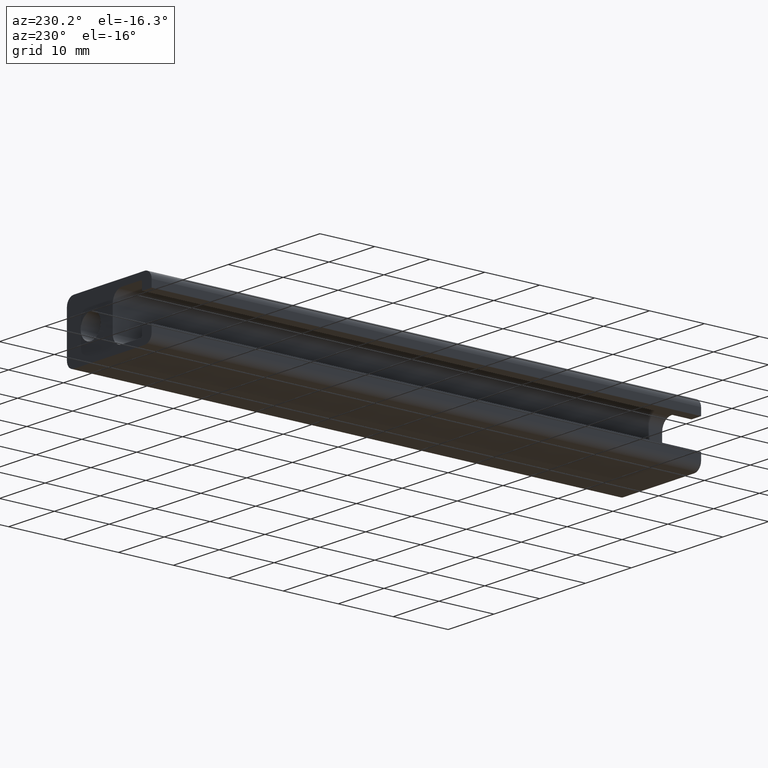
[diagram: clean part render]
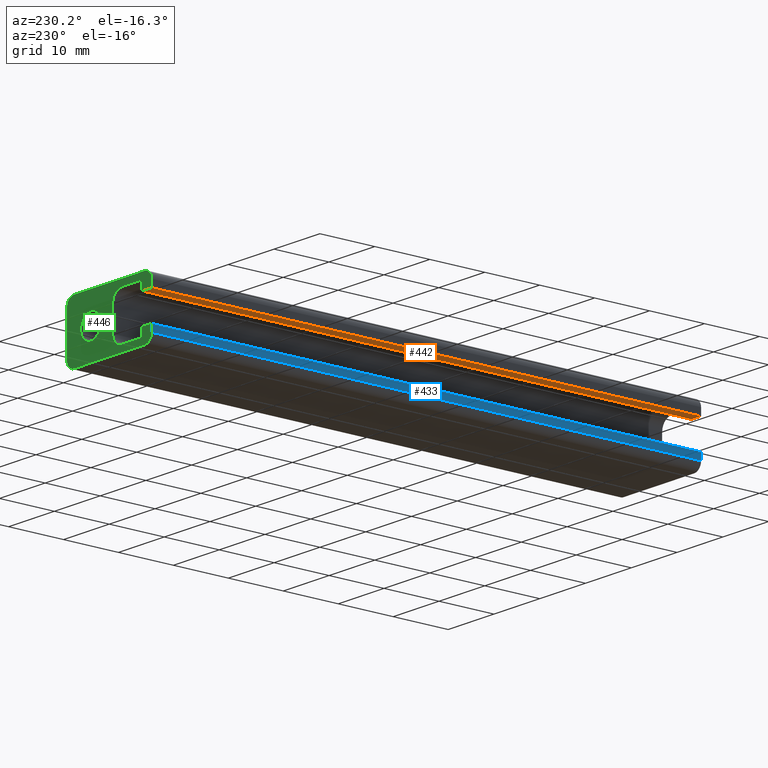
[diagram: same view with three faces highlighted in distinct colors, each labeled with its STEP entity id]
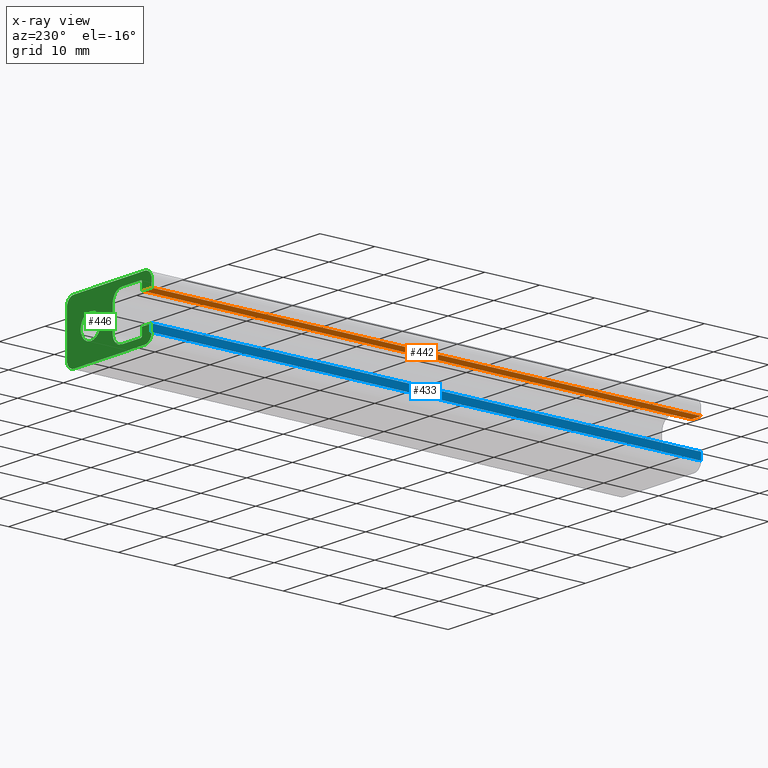
[diagram: x-ray of the same camera — body ghosted, the three highlighted faces saturated]
A machine part, auxiliary view with three faces highlighted in distinct colors.
The next image is the same camera in x-ray (body ghosted, the three faces saturated) — at least one of them is partly hidden behind the body in this view.
Their STEP definitions:

[orange] entity #442 — the highlighted planar face has unit normal (-0, 0, -1).
#52=LINE('',#728,#96);
#53=LINE('',#731,#97);
#54=LINE('',#733,#98);
#55=LINE('',#734,#99);
#96=VECTOR('',#597,100.);
#97=VECTOR('',#600,2.10000000000038);
#98=VECTOR('',#601,2.10000000000038);
#99=VECTOR('',#602,100.);
#113=PLANE('',#483);
#138=FACE_OUTER_BOUND('',#162,.T.);
#162=EDGE_LOOP('',(#361,#362,#363,#364));
#223=VERTEX_POINT('',#724);
#224=VERTEX_POINT('',#726);
#225=VERTEX_POINT('',#730);
#226=VERTEX_POINT('',#732);
#282=EDGE_CURVE('',#223,#224,#52,.T.);
#283=EDGE_CURVE('',#223,#225,#53,.T.);
#284=EDGE_CURVE('',#226,#224,#54,.T.);
#285=EDGE_CURVE('',#225,#226,#55,.T.);
#361=ORIENTED_EDGE('',*,*,#283,.F.);
#362=ORIENTED_EDGE('',*,*,#282,.T.);
#363=ORIENTED_EDGE('',*,*,#284,.F.);
#364=ORIENTED_EDGE('',*,*,#285,.F.);
#442=ADVANCED_FACE('',(#138),#113,.T.);
#483=AXIS2_PLACEMENT_3D('',#729,#598,#599);
#597=DIRECTION('',(0.,1.,0.));
#598=DIRECTION('center_axis',(-4.22942104619031E-15,0.,-1.));
#599=DIRECTION('ref_axis',(-1.,0.,4.21884749357559E-15));
#600=DIRECTION('',(1.,0.,-4.22942104619031E-15));
#601=DIRECTION('',(-1.,0.,4.22942104619031E-15));
#602=DIRECTION('',(0.,1.,0.));
#724=CARTESIAN_POINT('',(-9.25,0.,2.59999999999991));
#726=CARTESIAN_POINT('',(-9.25,100.,2.59999999999991));
#728=CARTESIAN_POINT('',(-9.25,0.,2.59999999999991));
#729=CARTESIAN_POINT('Origin',(-7.14999999999962,0.,2.5999999999999));
#730=CARTESIAN_POINT('',(-7.14999999999962,0.,2.5999999999999));
#731=CARTESIAN_POINT('',(-9.25,0.,2.59999999999991));
#732=CARTESIAN_POINT('',(-7.14999999999962,100.,2.5999999999999));
#733=CARTESIAN_POINT('',(-9.25,100.,2.59999999999991));
#734=CARTESIAN_POINT('',(-7.14999999999962,0.,2.5999999999999));

[blue] entity #433 — the highlighted planar face has unit normal (-1, 0, -0).
#33=LINE('',#674,#77);
#34=LINE('',#677,#78);
#35=LINE('',#679,#79);
#36=LINE('',#680,#80);
#77=VECTOR('',#544,100.);
#78=VECTOR('',#547,1.29999999999824);
#79=VECTOR('',#548,1.29999999999824);
#80=VECTOR('',#549,100.);
#108=PLANE('',#466);
#129=FACE_OUTER_BOUND('',#153,.T.);
#153=EDGE_LOOP('',(#325,#326,#327,#328));
#205=VERTEX_POINT('',#670);
#206=VERTEX_POINT('',#672);
#207=VERTEX_POINT('',#676);
#208=VERTEX_POINT('',#678);
#255=EDGE_CURVE('',#205,#206,#33,.T.);
#256=EDGE_CURVE('',#205,#207,#34,.T.);
#257=EDGE_CURVE('',#208,#206,#35,.T.);
#258=EDGE_CURVE('',#207,#208,#36,.T.);
#325=ORIENTED_EDGE('',*,*,#256,.F.);
#326=ORIENTED_EDGE('',*,*,#255,.T.);
#327=ORIENTED_EDGE('',*,*,#257,.F.);
#328=ORIENTED_EDGE('',*,*,#258,.F.);
#433=ADVANCED_FACE('',(#129),#108,.T.);
#466=AXIS2_PLACEMENT_3D('',#675,#545,#546);
#544=DIRECTION('',(0.,1.,0.));
#545=DIRECTION('center_axis',(-1.,0.,-6.83214169001023E-15));
#546=DIRECTION('ref_axis',(-6.75015598972095E-15,0.,1.));
#547=DIRECTION('',(6.83214169001023E-15,0.,-1.));
#548=DIRECTION('',(-6.83214169001023E-15,0.,1.));
#549=DIRECTION('',(0.,1.,0.));
#670=CARTESIAN_POINT('',(-9.25,0.,-2.60000000000049));
#672=CARTESIAN_POINT('',(-9.25,100.,-2.60000000000049));
#674=CARTESIAN_POINT('',(-9.25,0.,-2.60000000000049));
#675=CARTESIAN_POINT('Origin',(-9.24999999999999,0.,-3.89999999999873));
#676=CARTESIAN_POINT('',(-9.24999999999999,0.,-3.89999999999873));
#677=CARTESIAN_POINT('',(-9.25,0.,-2.60000000000049));
#678=CARTESIAN_POINT('',(-9.24999999999999,100.,-3.89999999999873));
#679=CARTESIAN_POINT('',(-9.25,100.,-2.60000000000049));
#680=CARTESIAN_POINT('',(-9.24999999999999,0.,-3.89999999999873));

[green] entity #446 — the highlighted planar face has unit normal (0, 1, 0).
#17=LINE('',#631,#61);
#21=LINE('',#643,#65);
#25=LINE('',#655,#69);
#29=LINE('',#667,#73);
#32=LINE('',#673,#76);
#35=LINE('',#679,#79);
#39=LINE('',#691,#83);
#43=LINE('',#703,#87);
#47=LINE('',#715,#91);
#51=LINE('',#727,#95);
#54=LINE('',#733,#98);
#57=LINE('',#739,#101);
#61=VECTOR('',#502,4.09999999999968);
#65=VECTOR('',#514,4.40000000000111);
#69=VECTOR('',#526,4.09999999999968);
#73=VECTOR('',#538,1.29999999999825);
#76=VECTOR('',#543,2.10000000000037);
#79=VECTOR('',#548,1.29999999999824);
#83=VECTOR('',#560,15.5000000000005);
#87=VECTOR('',#572,7.79999999999745);
#91=VECTOR('',#584,15.5000000000004);
#95=VECTOR('',#596,1.29999999999882);
#98=VECTOR('',#601,2.10000000000038);
#101=VECTOR('',#606,1.29999999999882);
#116=PLANE('',#489);
#119=FACE_BOUND('',#168,.T.);
#142=FACE_OUTER_BOUND('',#167,.T.);
#167=EDGE_LOOP('',(#394,#395,#396,#397,#398,#399,#400,#401,#402,#403,#404,
#405,#406,#407,#408,#409,#410,#411,#412,#413));
#168=EDGE_LOOP('',(#414));
#169=CIRCLE('',#450,2.2);
#172=CIRCLE('',#455,2.00000000000045);
#174=CIRCLE('',#459,2.00000000000045);
#176=CIRCLE('',#463,0.299999999999727);
#178=CIRCLE('',#469,1.49999999999977);
#180=CIRCLE('',#473,1.50000000000148);
#182=CIRCLE('',#477,1.49999999999974);
#184=CIRCLE('',#481,1.50000000000091);
#186=CIRCLE('',#487,0.299999999999727);
#187=VERTEX_POINT('',#620);
#191=VERTEX_POINT('',#628);
#192=VERTEX_POINT('',#630);
#194=VERTEX_POINT('',#636);
#196=VERTEX_POINT('',#642);
#198=VERTEX_POINT('',#648);
#200=VERTEX_POINT('',#654);
#202=VERTEX_POINT('',#660);
#204=VERTEX_POINT('',#666);
#206=VERTEX_POINT('',#672);
#208=VERTEX_POINT('',#678);
#210=VERTEX_POINT('',#684);
#212=VERTEX_POINT('',#690);
#214=VERTEX_POINT('',#696);
#216=VERTEX_POINT('',#702);
#218=VERTEX_POINT('',#708);
#220=VERTEX_POINT('',#714);
#222=VERTEX_POINT('',#720);
#224=VERTEX_POINT('',#726);
#226=VERTEX_POINT('',#732);
#228=VERTEX_POINT('',#738);
#229=EDGE_CURVE('',#187,#187,#169,.T.);
#233=EDGE_CURVE('',#192,#191,#17,.T.);
#236=EDGE_CURVE('',#194,#192,#172,.T.);
#239=EDGE_CURVE('',#196,#194,#21,.T.);
#242=EDGE_CURVE('',#198,#196,#174,.T.);
#245=EDGE_CURVE('',#200,#198,#25,.T.);
#248=EDGE_CURVE('',#202,#200,#176,.T.);
#251=EDGE_CURVE('',#204,#202,#29,.T.);
#254=EDGE_CURVE('',#206,#204,#32,.T.);
#257=EDGE_CURVE('',#208,#206,#35,.T.);
#260=EDGE_CURVE('',#210,#208,#178,.T.);
#263=EDGE_CURVE('',#212,#210,#39,.T.);
#266=EDGE_CURVE('',#214,#212,#180,.T.);
#269=EDGE_CURVE('',#216,#214,#43,.T.);
#272=EDGE_CURVE('',#218,#216,#182,.T.);
#275=EDGE_CURVE('',#220,#218,#47,.T.);
#278=EDGE_CURVE('',#222,#220,#184,.T.);
#281=EDGE_CURVE('',#224,#222,#51,.T.);
#284=EDGE_CURVE('',#226,#224,#54,.T.);
#287=EDGE_CURVE('',#228,#226,#57,.T.);
#290=EDGE_CURVE('',#191,#228,#186,.T.);
#394=ORIENTED_EDGE('',*,*,#290,.T.);
#395=ORIENTED_EDGE('',*,*,#287,.T.);
#396=ORIENTED_EDGE('',*,*,#284,.T.);
#397=ORIENTED_EDGE('',*,*,#281,.T.);
#398=ORIENTED_EDGE('',*,*,#278,.T.);
#399=ORIENTED_EDGE('',*,*,#275,.T.);
#400=ORIENTED_EDGE('',*,*,#272,.T.);
#401=ORIENTED_EDGE('',*,*,#269,.T.);
#402=ORIENTED_EDGE('',*,*,#266,.T.);
#403=ORIENTED_EDGE('',*,*,#263,.T.);
#404=ORIENTED_EDGE('',*,*,#260,.T.);
#405=ORIENTED_EDGE('',*,*,#257,.T.);
#406=ORIENTED_EDGE('',*,*,#254,.T.);
#407=ORIENTED_EDGE('',*,*,#251,.T.);
#408=ORIENTED_EDGE('',*,*,#248,.T.);
#409=ORIENTED_EDGE('',*,*,#245,.T.);
#410=ORIENTED_EDGE('',*,*,#242,.T.);
#411=ORIENTED_EDGE('',*,*,#239,.T.);
#412=ORIENTED_EDGE('',*,*,#236,.T.);
#413=ORIENTED_EDGE('',*,*,#233,.T.);
#414=ORIENTED_EDGE('',*,*,#229,.T.);
#446=ADVANCED_FACE('',(#142,#119),#116,.T.);
#450=AXIS2_PLACEMENT_3D('',#621,#494,#495);
#455=AXIS2_PLACEMENT_3D('',#637,#508,#509);
#459=AXIS2_PLACEMENT_3D('',#649,#520,#521);
#463=AXIS2_PLACEMENT_3D('',#661,#532,#533);
#469=AXIS2_PLACEMENT_3D('',#685,#554,#555);
#473=AXIS2_PLACEMENT_3D('',#697,#566,#567);
#477=AXIS2_PLACEMENT_3D('',#709,#578,#579);
#481=AXIS2_PLACEMENT_3D('',#721,#590,#591);
#487=AXIS2_PLACEMENT_3D('',#743,#612,#613);
#489=AXIS2_PLACEMENT_3D('',#745,#616,#617);
#494=DIRECTION('center_axis',(0.,-1.,0.));
#495=DIRECTION('ref_axis',(1.,0.,0.));
#502=DIRECTION('',(-1.,0.,-5.54569940105487E-13));
#508=DIRECTION('center_axis',(0.,-1.,0.));
#509=DIRECTION('ref_axis',(0.,0.,1.));
#514=DIRECTION('',(1.00929365874989E-15,0.,1.));
#520=DIRECTION('center_axis',(0.,-1.,0.));
#521=DIRECTION('ref_axis',(1.,0.,0.));
#526=DIRECTION('',(1.,0.,-1.38642485026372E-13));
#532=DIRECTION('center_axis',(0.,-1.,0.));
#533=DIRECTION('ref_axis',(0.,0.,-1.));
#538=DIRECTION('',(-3.41607084500508E-15,0.,-1.));
#543=DIRECTION('',(1.,0.,4.22942104619033E-15));
#548=DIRECTION('',(-6.83214169001023E-15,0.,1.));
#554=DIRECTION('center_axis',(0.,1.,0.));
#555=DIRECTION('ref_axis',(-5.92118946466844E-15,0.,1.));
#560=DIRECTION('',(-1.,0.,1.10735793294867E-13));
#566=DIRECTION('center_axis',(0.,1.,0.));
#567=DIRECTION('ref_axis',(-1.,0.,-2.96059473233082E-15));
#572=DIRECTION('',(2.24321985488438E-13,0.,-1.));
#578=DIRECTION('center_axis',(0.,1.,0.));
#579=DIRECTION('ref_axis',(-4.44089209850139E-15,0.,-1.));
#584=DIRECTION('',(1.,0.,-7.56384202583311E-14));
#590=DIRECTION('center_axis',(0.,1.,0.));
#591=DIRECTION('ref_axis',(1.,0.,-5.92118946466836E-15));
#596=DIRECTION('',(0.,0.,1.));
#601=DIRECTION('',(-1.,0.,4.22942104619031E-15));
#606=DIRECTION('',(6.83214169000715E-15,0.,-1.));
#612=DIRECTION('center_axis',(0.,-1.,0.));
#613=DIRECTION('ref_axis',(-1.,0.,0.));
#616=DIRECTION('center_axis',(0.,1.,0.));
#617=DIRECTION('ref_axis',(0.,0.,1.));
#620=CARTESIAN_POINT('',(1.84999999999931,100.,5.68703610903893E-13));
#621=CARTESIAN_POINT('Origin',(4.04999999999931,100.,5.6843418860808E-13));
#628=CARTESIAN_POINT('',(-6.8499999999999,100.,4.19999999999845));
#630=CARTESIAN_POINT('',(-2.75000000000022,100.,4.20000000000073));
#631=CARTESIAN_POINT('',(-6.8499999999999,100.,4.19999999999845));
#636=CARTESIAN_POINT('',(-0.749999999999762,100.,2.20000000000027));
#637=CARTESIAN_POINT('Origin',(-2.75000000000022,100.,2.20000000000028));
#642=CARTESIAN_POINT('',(-0.749999999999766,100.,-2.20000000000084));
#643=CARTESIAN_POINT('',(-0.749999999999762,100.,2.20000000000027));
#648=CARTESIAN_POINT('',(-2.75000000000022,100.,-4.2000000000013));
#649=CARTESIAN_POINT('Origin',(-2.75000000000022,100.,-2.20000000000084));
#654=CARTESIAN_POINT('',(-6.8499999999999,100.,-4.20000000000073));
#655=CARTESIAN_POINT('',(-2.75000000000022,100.,-4.2000000000013));
#660=CARTESIAN_POINT('',(-7.14999999999963,100.,-3.89999999999873));
#661=CARTESIAN_POINT('Origin',(-6.8499999999999,100.,-3.89999999999873));
#666=CARTESIAN_POINT('',(-7.14999999999963,100.,-2.60000000000048));
#667=CARTESIAN_POINT('',(-7.14999999999963,100.,-3.89999999999873));
#672=CARTESIAN_POINT('',(-9.25,100.,-2.60000000000049));
#673=CARTESIAN_POINT('',(-7.14999999999963,100.,-2.60000000000048));
#678=CARTESIAN_POINT('',(-9.24999999999999,100.,-3.89999999999873));
#679=CARTESIAN_POINT('',(-9.25,100.,-2.60000000000049));
#684=CARTESIAN_POINT('',(-7.75000000000021,100.,-5.39999999999849));
#685=CARTESIAN_POINT('Origin',(-7.75000000000022,100.,-3.89999999999873));
#690=CARTESIAN_POINT('',(7.75000000000024,100.,-5.40000000000021));
#691=CARTESIAN_POINT('',(-7.75000000000021,100.,-5.39999999999849));
#696=CARTESIAN_POINT('',(9.25000000000171,100.,-3.89999999999872));
#697=CARTESIAN_POINT('Origin',(7.75000000000023,100.,-3.89999999999873));
#702=CARTESIAN_POINT('',(9.24999999999996,100.,3.89999999999873));
#703=CARTESIAN_POINT('',(9.25000000000171,100.,-3.89999999999872));
#708=CARTESIAN_POINT('',(7.75000000000023,100.,5.39999999999846));
#709=CARTESIAN_POINT('Origin',(7.75000000000022,100.,3.89999999999872));
#714=CARTESIAN_POINT('',(-7.75000000000021,100.,5.39999999999964));
#715=CARTESIAN_POINT('',(7.75000000000023,100.,5.39999999999846));
#720=CARTESIAN_POINT('',(-9.25,100.,3.89999999999874));
#721=CARTESIAN_POINT('Origin',(-7.75000000000021,100.,3.89999999999873));
#726=CARTESIAN_POINT('',(-9.25,100.,2.59999999999991));
#727=CARTESIAN_POINT('',(-9.25,100.,3.89999999999874));
#732=CARTESIAN_POINT('',(-7.14999999999962,100.,2.5999999999999));
#733=CARTESIAN_POINT('',(-9.25,100.,2.59999999999991));
#738=CARTESIAN_POINT('',(-7.14999999999963,100.,3.89999999999873));
#739=CARTESIAN_POINT('',(-7.14999999999962,100.,2.5999999999999));
#743=CARTESIAN_POINT('Origin',(-6.8499999999999,100.,3.89999999999873));
#745=CARTESIAN_POINT('Origin',(-0.812222789170337,100.,-2.11269015450213E-13));